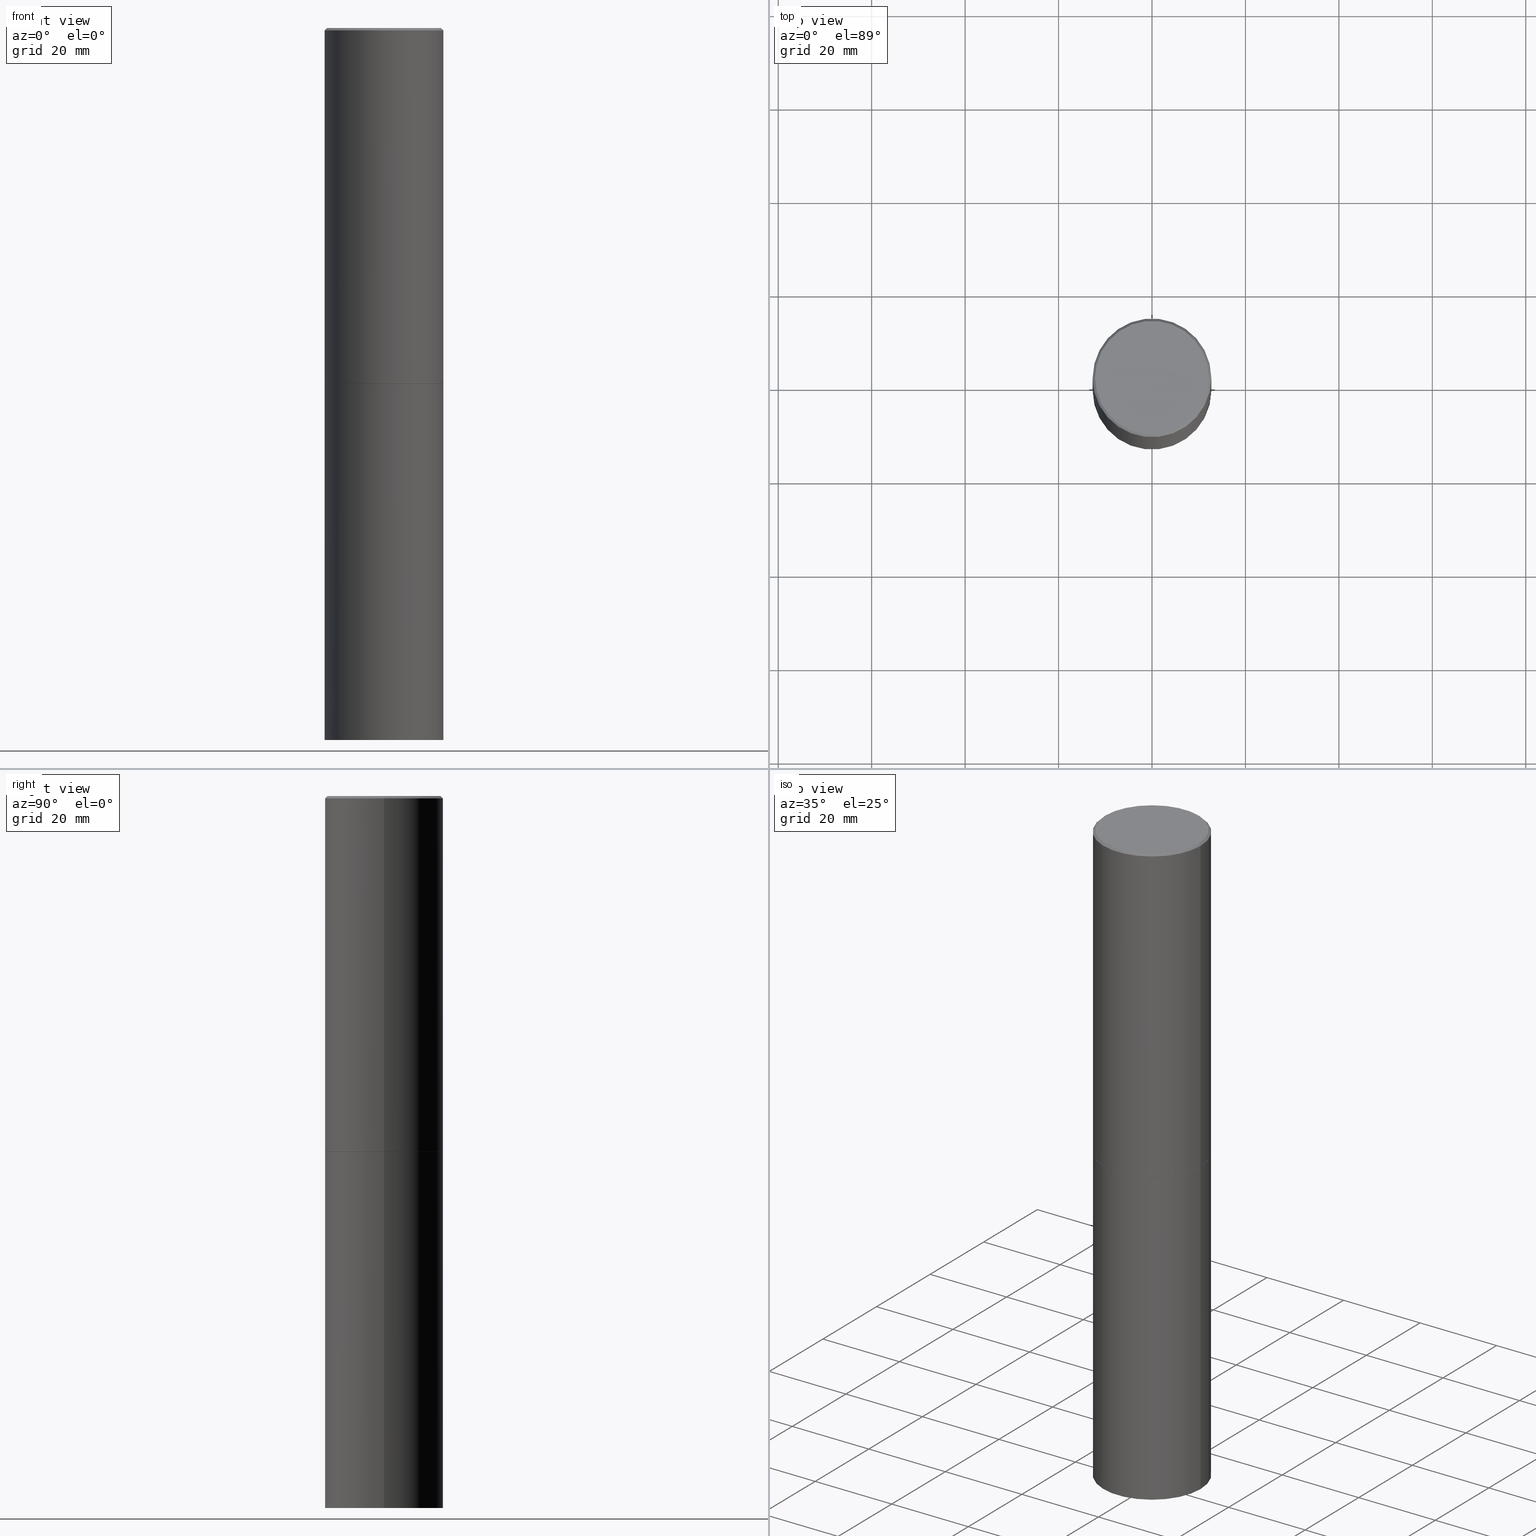
[diagram: canonical four-view strip — front | top / right | iso, engineering-drawing reading convention]
A machine part, canonical four-view strip (front | top / right | iso — engineering-drawing reading convention). The complete STEP part file that produces these views, byte-faithful:
ISO-10303-21;
HEADER;
FILE_DESCRIPTION (( 'STEP AP203' ),
    '1' );
FILE_NAME ('37695.STEP',
    '2024-02-27T22:45:29',
    ( '' ),
    ( '' ),
    'SwSTEP 2.0',
    'SolidWorks 2023',
    '' );
FILE_SCHEMA (( 'CONFIG_CONTROL_DESIGN' ));
ENDSEC;

DATA;
#1 = LOCAL_TIME ( 17, 45, 29.00000000000000000, #332 ) ;
#2 = ORIENTED_EDGE ( 'NONE', *, *, #165, .T. ) ;
#3 = DATE_TIME_ROLE ( 'creation_date' ) ;
#4 = ORIENTED_EDGE ( 'NONE', *, *, #250, .T. ) ;
#5 = APPROVAL_DATE_TIME ( #344, #346 ) ;
#6 = ORIENTED_EDGE ( 'NONE', *, *, #296, .T. ) ;
#7 = VECTOR ( 'NONE', #289, 39.37007874015748143 ) ;
#8 = PERSON_AND_ORGANIZATION ( #264, #231 ) ;
#9 = ORIENTED_EDGE ( 'NONE', *, *, #233, .F. ) ;
#10 = ORIENTED_EDGE ( 'NONE', *, *, #130, .F. ) ;
#11 =( NAMED_UNIT ( * ) SI_UNIT ( $, .STERADIAN. ) SOLID_ANGLE_UNIT ( ) );
#12 = ORIENTED_EDGE ( 'NONE', *, *, #36, .F. ) ;
#13 = MANIFOLD_SOLID_BREP ( 'Body-Move/Copy2[2]', #126 ) ;
#14 = CARTESIAN_POINT ( 'NONE',  ( -0.4999999999999996114, 3.421651712066267296E-15, -0.02000000000000010797 ) ) ;
#15 = DIRECTION ( 'NONE',  ( 1.000000000000000000, -6.982962677686266711E-15, 0.000000000000000000 ) ) ;
#16 = CARTESIAN_POINT ( 'NONE',  ( -0.5000000000000000000, -1.717677402183225026E-15, -2.999000000000000554 ) ) ;
#17 = LINE ( 'NONE', #125, #307 ) ;
#18 = AXIS2_PLACEMENT_3D ( 'NONE', #97, #153, #308 ) ;
#19 = DIRECTION ( 'NONE',  ( -1.000000000000000000, 6.982962677686266711E-15, 0.000000000000000000 ) ) ;
#20 = DIRECTION ( 'NONE',  ( -2.445468806185136597E-29, 3.491481338843145583E-15, 1.000000000000000000 ) ) ;
#21 = UNCERTAINTY_MEASURE_WITH_UNIT (LENGTH_MEASURE( 1.000000000000000082E-05 ), #236, 'distance_accuracy_value', 'NONE');
#22 = FACE_OUTER_BOUND ( 'NONE', #349, .T. ) ;
#23 = CIRCLE ( 'NONE', #149, 0.4999999999999996114 ) ;
#24 = EDGE_CURVE ( 'NONE', #208, #109, #120, .T. ) ;
#25 = CARTESIAN_POINT ( 'NONE',  ( -0.4999999999999997780, 3.552713678800499352E-15, -2.459467545127452050E-29 ) ) ;
#26 = DIRECTION ( 'NONE',  ( -1.000000000000000000, 6.982962677686265922E-15, -4.876176775795935793E-29 ) ) ;
#27 = CARTESIAN_POINT ( 'NONE',  ( 7.336406418555409790E-29, -1.047444401652943635E-14, -3.000000000000000444 ) ) ;
#28 = CLOSED_SHELL ( 'NONE', ( #105, #292, #274, #180 ) ) ;
#29 =( GEOMETRIC_REPRESENTATION_CONTEXT ( 3 ) GLOBAL_UNCERTAINTY_ASSIGNED_CONTEXT ( ( #21 ) ) GLOBAL_UNIT_ASSIGNED_CONTEXT ( ( #236, #141, #11 ) ) REPRESENTATION_CONTEXT ( 'NONE', 'WORKASPACE' ) );
#30 = DIRECTION ( 'NONE',  ( 1.000000000000000000, 0.000000000000000000, 0.000000000000000000 ) ) ;
#31 = APPROVAL_STATUS ( 'not_yet_approved' ) ;
#32 = VERTEX_POINT ( 'NONE', #345 ) ;
#33 = EDGE_LOOP ( 'NONE', ( #111, #59, #315, #178 ) ) ;
#34 = PERSON_AND_ORGANIZATION_ROLE ( 'creator' ) ;
#35 = ORIENTED_EDGE ( 'NONE', *, *, #201, .F. ) ;
#36 = EDGE_CURVE ( 'NONE', #327, #91, #197, .T. ) ;
#37 = COORDINATED_UNIVERSAL_TIME_OFFSET ( 5, 0, .BEHIND. ) ;
#38 = EDGE_LOOP ( 'NONE', ( #269, #6, #93, #35 ) ) ;
#39 = EDGE_CURVE ( 'NONE', #84, #179, #17, .T. ) ;
#40 = ORIENTED_EDGE ( 'NONE', *, *, #280, .F. ) ;
#41 = DIRECTION ( 'NONE',  ( 2.445468806185136597E-29, -3.491481338843145583E-15, -1.000000000000000000 ) ) ;
#42 = FACE_OUTER_BOUND ( 'NONE', #33, .T. ) ;
#43 = CARTESIAN_POINT ( 'NONE',  ( 1.467281283711081958E-28, -2.094888803305887271E-14, -6.000000000000000888 ) ) ;
#44 = CIRCLE ( 'NONE', #239, 0.5000000000000000000 ) ;
#45 = CARTESIAN_POINT ( 'NONE',  ( -0.4999999999999996114, 3.421651712066267296E-15, -0.02000000000000010797 ) ) ;
#46 = CYLINDRICAL_SURFACE ( 'NONE', #300, 0.5000000000000000000 ) ;
#47 = DIRECTION ( 'NONE',  ( 1.000000000000000000, -6.982962677686265133E-15, 0.000000000000000000 ) ) ;
#48 = CC_DESIGN_PERSON_AND_ORGANIZATION_ASSIGNMENT ( #110, #317, ( #301 ) ) ;
#49 = DIRECTION ( 'NONE',  ( 1.000000000000000000, -6.982962677686266711E-15, 0.000000000000000000 ) ) ;
#50 = CYLINDRICAL_SURFACE ( 'NONE', #113, 0.4999999999999997780 ) ;
#51 = DIRECTION ( 'NONE',  ( -2.445468806185136877E-29, 3.491481338843145188E-15, 1.000000000000000000 ) ) ;
#52 = VERTEX_POINT ( 'NONE', #304 ) ;
#53 = PERSON_AND_ORGANIZATION_ROLE ( 'classification_officer' ) ;
#54 = CARTESIAN_POINT ( 'NONE',  ( -0.5000000000000000000, 3.552713678800500929E-15, -2.459467545127452891E-29 ) ) ;
#55 = PERSON_AND_ORGANIZATION ( #264, #231 ) ;
#56 = ORIENTED_EDGE ( 'NONE', *, *, #280, .T. ) ;
#57 = EDGE_CURVE ( 'NONE', #89, #109, #196, .T. ) ;
#58 = APPLICATION_PROTOCOL_DEFINITION ( 'international standard', 'config_control_design', 1994, #207 ) ;
#59 = ORIENTED_EDGE ( 'NONE', *, *, #36, .T. ) ;
#60 = CIRCLE ( 'NONE', #85, 0.4799999999999995937 ) ;
#61 = COORDINATED_UNIVERSAL_TIME_OFFSET ( 5, 0, .BEHIND. ) ;
#62 = ORIENTED_EDGE ( 'NONE', *, *, #296, .F. ) ;
#63 = ADVANCED_FACE ( 'NONE', ( #275 ), #96, .F. ) ;
#64 = DATE_AND_TIME ( #143, #219 ) ;
#65 = EDGE_LOOP ( 'NONE', ( #355, #260, #199, #235 ) ) ;
#66 = DIRECTION ( 'NONE',  ( 2.445468806185136597E-29, -3.491481338843145583E-15, -1.000000000000000000 ) ) ;
#67 = CONICAL_SURFACE ( 'NONE', #331, 0.4989999999999999991, 0.7853981633975507526 ) ;
#68 = AXIS2_PLACEMENT_3D ( 'NONE', #221, #75, #49 ) ;
#69 = LINE ( 'NONE', #184, #112 ) ;
#70 = DIRECTION ( 'NONE',  ( -2.445468806185136597E-29, 3.491481338843145583E-15, 1.000000000000000000 ) ) ;
#71 = CARTESIAN_POINT ( 'NONE',  ( 4.890937612370299433E-31, -6.982962677686328587E-17, -0.02000000000000010797 ) ) ;
#72 = FACE_OUTER_BOUND ( 'NONE', #118, .T. ) ;
#73 = SECURITY_CLASSIFICATION ( '', '', #119 ) ;
#74 = EDGE_CURVE ( 'NONE', #84, #327, #44, .T. ) ;
#75 = DIRECTION ( 'NONE',  ( -2.445468806185136597E-29, 3.491481338843145583E-15, 1.000000000000000000 ) ) ;
#76 = CC_DESIGN_DATE_AND_TIME_ASSIGNMENT ( #64, #3, ( #305 ) ) ;
#77 = DIRECTION ( 'NONE',  ( -2.445468806185136597E-29, 3.491481338843145583E-15, 1.000000000000000000 ) ) ;
#78 = CARTESIAN_POINT ( 'NONE',  ( 0.000000000000000000, 0.000000000000000000, 0.000000000000000000 ) ) ;
#79 = VECTOR ( 'NONE', #51, 39.37007874015748143 ) ;
#80 = CARTESIAN_POINT ( 'NONE',  ( -0.4799999999999995937, 3.386736898677836436E-15, 1.280553747027767124E-17 ) ) ;
#81 = ADVANCED_FACE ( 'NONE', ( #72 ), #256, .T. ) ;
#82 = CARTESIAN_POINT ( 'NONE',  ( -3.131554243005659264E-46, 4.471029511141341874E-32, 1.280553747030123384E-17 ) ) ;
#83 = PERSON_AND_ORGANIZATION ( #264, #231 ) ;
#84 = VERTEX_POINT ( 'NONE', #336 ) ;
#85 = AXIS2_PLACEMENT_3D ( 'NONE', #129, #248, #218 ) ;
#86 = AXIS2_PLACEMENT_3D ( 'NONE', #286, #168, #223 ) ;
#87 = DATE_AND_TIME ( #348, #121 ) ;
#88 = EDGE_LOOP ( 'NONE', ( #62, #353, #326, #293 ) ) ;
#89 = VERTEX_POINT ( 'NONE', #247 ) ;
#90 = DIRECTION ( 'NONE',  ( 0.000000000000000000, 0.000000000000000000, 1.000000000000000000 ) ) ;
#91 = VERTEX_POINT ( 'NONE', #272 ) ;
#92 = APPROVAL_PERSON_ORGANIZATION ( #8, #346, #175 ) ;
#93 = ORIENTED_EDGE ( 'NONE', *, *, #194, .F. ) ;
#94 = FACE_OUTER_BOUND ( 'NONE', #65, .T. ) ;
#95 = DIRECTION ( 'NONE',  ( -2.445468806185136597E-29, 3.491481338843145583E-15, 1.000000000000000000 ) ) ;
#96 = PLANE ( 'NONE',  #276 ) ;
#97 = CARTESIAN_POINT ( 'NONE',  ( 7.336406418555409790E-29, -1.047444401652943635E-14, -3.000000000000000444 ) ) ;
#98 = DIRECTION ( 'NONE',  ( 2.438088387897960049E-29, -3.491481338843145188E-15, -1.000000000000000000 ) ) ;
#99 = VECTOR ( 'NONE', #172, 39.37007874015748143 ) ;
#100 = CARTESIAN_POINT ( 'NONE',  ( -0.4989999999999999991, -6.928835765086536432E-15, -3.000000000000000444 ) ) ;
#101 = AXIS2_PLACEMENT_3D ( 'NONE', #27, #257, #338 ) ;
#102 = LINE ( 'NONE', #25, #79 ) ;
#103 = DIRECTION ( 'NONE',  ( -2.445468806185136597E-29, 3.491481338843145583E-15, 1.000000000000000000 ) ) ;
#104 = LINE ( 'NONE', #339, #7 ) ;
#105 = ADVANCED_FACE ( 'NONE', ( #42 ), #359, .T. ) ;
#106 = CONICAL_SURFACE ( 'NONE', #251, 0.4999999999999996114, 0.7853981633974450594 ) ;
#107 = AXIS2_PLACEMENT_3D ( 'NONE', #365, #312, #26 ) ;
#108 = DIRECTION ( 'NONE',  ( 0.7071067811865452413, -7.319954787623248157E-15, -0.7071067811865497932 ) ) ;
#109 = VERTEX_POINT ( 'NONE', #45 ) ;
#110 = PERSON_AND_ORGANIZATION ( #264, #231 ) ;
#111 = ORIENTED_EDGE ( 'NONE', *, *, #74, .T. ) ;
#112 = VECTOR ( 'NONE', #302, 39.37007874015748143 ) ;
#113 = AXIS2_PLACEMENT_3D ( 'NONE', #78, #167, #192 ) ;
#114 = APPROVAL ( #31, 'UNSPECIFIED' ) ;
#115 = APPROVAL_STATUS ( 'not_yet_approved' ) ;
#116 = ORIENTED_EDGE ( 'NONE', *, *, #254, .F. ) ;
#117 = LENGTH_MEASURE_WITH_UNIT ( LENGTH_MEASURE( 0.02539999999999999897 ), #265 );
#118 = EDGE_LOOP ( 'NONE', ( #176, #200, #232, #263 ) ) ;
#119 = SECURITY_CLASSIFICATION_LEVEL ( 'unclassified' ) ;
#120 = LINE ( 'NONE', #14, #205 ) ;
#121 = LOCAL_TIME ( 17, 45, 29.00000000000000000, #267 ) ;
#122 = DIRECTION ( 'NONE',  ( -0.7071067811865452413, 2.468850131082233000E-15, -0.7071067811865497932 ) ) ;
#123 = CARTESIAN_POINT ( 'NONE',  ( -0.4989999999999999991, -6.923537310738314819E-15, -3.000000000000000444 ) ) ;
#124 = ADVANCED_FACE ( 'NONE', ( #360 ), #159, .T. ) ;
#125 = CARTESIAN_POINT ( 'NONE',  ( 0.5000000000000000000, -3.491481338843133355E-15, 2.438088387897967896E-29 ) ) ;
#126 = CLOSED_SHELL ( 'NONE', ( #341, #303, #154, #81, #124, #139, #335, #63 ) ) ;
#127 = CC_DESIGN_APPROVAL ( #282, ( #73 ) ) ;
#128 = DIRECTION ( 'NONE',  ( 1.000000000000000000, -6.982962677686262766E-15, 0.000000000000000000 ) ) ;
#129 = CARTESIAN_POINT ( 'NONE',  ( -3.131554243005659264E-46, 4.471029511141341874E-32, 1.280553747030123384E-17 ) ) ;
#130 = EDGE_CURVE ( 'NONE', #91, #179, #316, .T. ) ;
#131 = MANIFOLD_SOLID_BREP ( 'Body-Move/Copy2[1]', #28 ) ;
#132 = FACE_OUTER_BOUND ( 'NONE', #320, .T. ) ;
#133 = FACE_OUTER_BOUND ( 'NONE', #297, .T. ) ;
#134 = EDGE_CURVE ( 'NONE', #109, #89, #23, .T. ) ;
#135 = CC_DESIGN_PERSON_AND_ORGANIZATION_ASSIGNMENT ( #195, #261, ( #301 ) ) ;
#136 = PLANE ( 'NONE',  #107 ) ;
#137 = AXIS2_PLACEMENT_3D ( 'NONE', #356, #299, #333 ) ;
#138 = MECHANICAL_CONTEXT ( 'NONE', #207, 'mechanical' ) ;
#139 = ADVANCED_FACE ( 'NONE', ( #213 ), #67, .T. ) ;
#140 = ORIENTED_EDGE ( 'NONE', *, *, #130, .T. ) ;
#141 =( NAMED_UNIT ( * ) PLANE_ANGLE_UNIT ( ) SI_UNIT ( $, .RADIAN. ) );
#142 = ORIENTED_EDGE ( 'NONE', *, *, #241, .T. ) ;
#143 = CALENDAR_DATE ( 2024, 27, 2 ) ;
#144 = VERTEX_POINT ( 'NONE', #123 ) ;
#145 = APPROVAL_DATE_TIME ( #177, #114 ) ;
#146 = EDGE_LOOP ( 'NONE', ( #9, #170, #56, #270 ) ) ;
#147 = APPLICATION_CONTEXT ( 'configuration controlled 3d designs of mechanical parts and assemblies' ) ;
#148 = ORIENTED_EDGE ( 'NONE', *, *, #194, .T. ) ;
#149 = AXIS2_PLACEMENT_3D ( 'NONE', #71, #217, #15 ) ;
#150 = VECTOR ( 'NONE', #193, 39.37007874015748143 ) ;
#151 = DIMENSIONAL_EXPONENTS ( 1.000000000000000000, 0.000000000000000000, 0.000000000000000000, 0.000000000000000000, 0.000000000000000000, 0.000000000000000000, 0.000000000000000000 ) ;
#152 = APPROVAL_DATE_TIME ( #361, #282 ) ;
#153 = DIRECTION ( 'NONE',  ( -2.445468806185136597E-29, 3.491481338843145583E-15, 1.000000000000000000 ) ) ;
#154 = ADVANCED_FACE ( 'NONE', ( #94 ), #106, .T. ) ;
#155 = CARTESIAN_POINT ( 'NONE',  ( 4.890937612370299433E-31, -6.982962677686328587E-17, -0.02000000000000010797 ) ) ;
#156 = DIRECTION ( 'NONE',  ( -2.445468806185136597E-29, 3.491481338843145583E-15, 1.000000000000000000 ) ) ;
#157 = AXIS2_PLACEMENT_3D ( 'NONE', #311, #313, #47 ) ;
#158 = AXIS2_PLACEMENT_3D ( 'NONE', #363, #224, #161 ) ;
#159 = CYLINDRICAL_SURFACE ( 'NONE', #230, 0.4999999999999997780 ) ;
#160 = CARTESIAN_POINT ( 'NONE',  ( 0.000000000000000000, 0.000000000000000000, 0.000000000000000000 ) ) ;
#161 = DIRECTION ( 'NONE',  ( -1.000000000000000000, 6.982962677686265922E-15, -4.876176775795935793E-29 ) ) ;
#162 = CIRCLE ( 'NONE', #214, 0.5000000000000000000 ) ;
#163 = DIRECTION ( 'NONE',  ( -2.445468806185136597E-29, 3.491481338843145583E-15, 1.000000000000000000 ) ) ;
#164 = CC_DESIGN_SECURITY_CLASSIFICATION ( #73, ( #301 ) ) ;
#165 = EDGE_CURVE ( 'NONE', #208, #52, #60, .T. ) ;
#166 = DIRECTION ( 'NONE',  ( -2.445468806185136597E-29, 3.491481338843145583E-15, 1.000000000000000000 ) ) ;
#167 = DIRECTION ( 'NONE',  ( -2.445468806185136597E-29, 3.491481338843145583E-15, 1.000000000000000000 ) ) ;
#168 = DIRECTION ( 'NONE',  ( -2.445468806185136597E-29, 3.491481338843145583E-15, 1.000000000000000000 ) ) ;
#169 = AXIS2_PLACEMENT_3D ( 'NONE', #362, #41, #357 ) ;
#170 = ORIENTED_EDGE ( 'NONE', *, *, #268, .T. ) ;
#171 = DIRECTION ( 'NONE',  ( 1.000000000000000000, -6.982962677686265133E-15, 0.000000000000000000 ) ) ;
#172 = DIRECTION ( 'NONE',  ( -2.445468806185136877E-29, 3.491481338843145188E-15, 1.000000000000000000 ) ) ;
#173 = APPROVAL_STATUS ( 'not_yet_approved' ) ;
#174 = EDGE_LOOP ( 'NONE', ( #12, #238, #352, #10 ) ) ;
#175 = APPROVAL_ROLE ( '' ) ;
#176 = ORIENTED_EDGE ( 'NONE', *, *, #249, .F. ) ;
#177 = DATE_AND_TIME ( #228, #277 ) ;
#178 = ORIENTED_EDGE ( 'NONE', *, *, #39, .F. ) ;
#179 = VERTEX_POINT ( 'NONE', #244 ) ;
#180 = ADVANCED_FACE ( 'NONE', ( #189 ), #46, .T. ) ;
#181 = DIRECTION ( 'NONE',  ( 1.000000000000000000, -6.982962677686266711E-15, 0.000000000000000000 ) ) ;
#182 = AXIS2_PLACEMENT_3D ( 'NONE', #216, #70, #306 ) ;
#183 = APPROVAL_PERSON_ORGANIZATION ( #55, #282, #211 ) ;
#184 = CARTESIAN_POINT ( 'NONE',  ( 0.4989999999999999991, -1.395894239269488369E-14, -3.000000000000000444 ) ) ;
#185 = CC_DESIGN_DATE_AND_TIME_ASSIGNMENT ( #87, #198, ( #73 ) ) ;
#186 = CARTESIAN_POINT ( 'NONE',  ( 0.000000000000000000, 0.000000000000000000, 0.000000000000000000 ) ) ;
#187 = DIRECTION ( 'NONE',  ( -2.445468806185136597E-29, 3.491481338843145583E-15, 1.000000000000000000 ) ) ;
#188 = AXIS2_PLACEMENT_3D ( 'NONE', #364, #77, #171 ) ;
#189 = FACE_OUTER_BOUND ( 'NONE', #174, .T. ) ;
#190 = LINE ( 'NONE', #343, #225 ) ;
#191 = DIRECTION ( 'NONE',  ( 1.000000000000000000, -6.982962677686262766E-15, 0.000000000000000000 ) ) ;
#192 = DIRECTION ( 'NONE',  ( 1.000000000000000000, -6.982962677686266711E-15, 4.876176775795935793E-29 ) ) ;
#193 = DIRECTION ( 'NONE',  ( -0.7071067811866199593, 7.493145998870616062E-15, 0.7071067811864750752 ) ) ;
#194 = EDGE_CURVE ( 'NONE', #322, #203, #324, .T. ) ;
#195 = PERSON_AND_ORGANIZATION ( #264, #231 ) ;
#196 = CIRCLE ( 'NONE', #137, 0.4999999999999996114 ) ;
#197 = LINE ( 'NONE', #54, #99 ) ;
#198 = DATE_TIME_ROLE ( 'classification_date' ) ;
#199 = ORIENTED_EDGE ( 'NONE', *, *, #57, .T. ) ;
#200 = ORIENTED_EDGE ( 'NONE', *, *, #165, .F. ) ;
#201 = EDGE_CURVE ( 'NONE', #32, #322, #69, .T. ) ;
#202 = APPROVAL_ROLE ( '' ) ;
#203 = VERTEX_POINT ( 'NONE', #16 ) ;
#204 = PRODUCT_RELATED_PRODUCT_CATEGORY ( 'detail', '', ( #209 ) ) ;
#205 = VECTOR ( 'NONE', #122, 39.37007874015748143 ) ;
#206 = AXIS2_PLACEMENT_3D ( 'NONE', #82, #103, #366 ) ;
#207 = APPLICATION_CONTEXT ( 'configuration controlled 3d designs of mechanical parts and assemblies' ) ;
#208 = VERTEX_POINT ( 'NONE', #80 ) ;
#209 = PRODUCT ( '37695', '37695', '', ( #138 ) ) ;
#210 = EDGE_CURVE ( 'NONE', #327, #84, #162, .T. ) ;
#211 = APPROVAL_ROLE ( '' ) ;
#212 = DIRECTION ( 'NONE',  ( 1.000000000000000000, -6.982962677686266711E-15, 4.876176775795935793E-29 ) ) ;
#213 = FACE_OUTER_BOUND ( 'NONE', #88, .T. ) ;
#214 = AXIS2_PLACEMENT_3D ( 'NONE', #314, #166, #191 ) ;
#215 = CC_DESIGN_APPROVAL ( #346, ( #305 ) ) ;
#216 = CARTESIAN_POINT ( 'NONE',  ( 0.000000000000000000, 0.000000000000000000, 0.000000000000000000 ) ) ;
#217 = DIRECTION ( 'NONE',  ( -2.445468806185136597E-29, 3.491481338843145583E-15, 1.000000000000000000 ) ) ;
#218 = DIRECTION ( 'NONE',  ( 1.000000000000000000, -6.982962677686266711E-15, 4.876036955247133327E-29 ) ) ;
#219 = LOCAL_TIME ( 17, 45, 29.00000000000000000, #37 ) ;
#220 = PLANE ( 'NONE',  #101 ) ;
#221 = CARTESIAN_POINT ( 'NONE',  ( 7.336406418555409790E-29, -1.047444401652943635E-14, -3.000000000000000444 ) ) ;
#222 = CC_DESIGN_PERSON_AND_ORGANIZATION_ASSIGNMENT ( #229, #234, ( #209 ) ) ;
#223 = DIRECTION ( 'NONE',  ( 1.000000000000000000, -6.982962677686266711E-15, 0.000000000000000000 ) ) ;
#224 = DIRECTION ( 'NONE',  ( 2.438088387897960049E-29, -3.491481338843145188E-15, -1.000000000000000000 ) ) ;
#225 = VECTOR ( 'NONE', #108, 39.37007874015748143 ) ;
#226 = EDGE_CURVE ( 'NONE', #144, #32, #246, .T. ) ;
#227 = CARTESIAN_POINT ( 'NONE',  ( 7.336406418555409790E-29, -1.047444401652943635E-14, -3.000000000000000444 ) ) ;
#228 = CALENDAR_DATE ( 2024, 27, 2 ) ;
#229 = PERSON_AND_ORGANIZATION ( #264, #231 ) ;
#230 = AXIS2_PLACEMENT_3D ( 'NONE', #186, #156, #212 ) ;
#231 = ORGANIZATION ( 'UNSPECIFIED', 'UNSPECIFIED', '' ) ;
#232 = ORIENTED_EDGE ( 'NONE', *, *, #24, .T. ) ;
#233 = EDGE_CURVE ( 'NONE', #203, #109, #102, .T. ) ;
#234 = PERSON_AND_ORGANIZATION_ROLE ( 'design_owner' ) ;
#235 = ORIENTED_EDGE ( 'NONE', *, *, #24, .F. ) ;
#236 =( CONVERSION_BASED_UNIT ( 'INCH', #117 ) LENGTH_UNIT ( ) NAMED_UNIT ( #151 ) );
#237 = ORIENTED_EDGE ( 'NONE', *, *, #210, .F. ) ;
#238 = ORIENTED_EDGE ( 'NONE', *, *, #210, .T. ) ;
#239 = AXIS2_PLACEMENT_3D ( 'NONE', #43, #334, #128 ) ;
#240 = CC_DESIGN_APPROVAL ( #114, ( #301 ) ) ;
#241 = EDGE_CURVE ( 'NONE', #52, #208, #271, .T. ) ;
#242 = CARTESIAN_POINT ( 'NONE',  ( 7.336406418555409790E-29, -1.047444401652943635E-14, -3.000000000000000444 ) ) ;
#243 = CALENDAR_DATE ( 2024, 27, 2 ) ;
#244 = CARTESIAN_POINT ( 'NONE',  ( 0.5000000000000000000, -1.396592535537257129E-14, -3.000000000000000444 ) ) ;
#245 = DIRECTION ( 'NONE',  ( -2.445468806185136877E-29, 3.491481338843145188E-15, 1.000000000000000000 ) ) ;
#246 = CIRCLE ( 'NONE', #157, 0.4989999999999999991 ) ;
#247 = CARTESIAN_POINT ( 'NONE',  ( 0.4999999999999996114, -3.500078625662626318E-15, -0.02000000000000010797 ) ) ;
#248 = DIRECTION ( 'NONE',  ( -2.445468806185136597E-29, 3.491481338843145583E-15, 1.000000000000000000 ) ) ;
#249 = EDGE_CURVE ( 'NONE', #52, #89, #190, .T. ) ;
#250 = EDGE_CURVE ( 'NONE', #179, #91, #258, .T. ) ;
#251 = AXIS2_PLACEMENT_3D ( 'NONE', #155, #66, #19 ) ;
#252 = LOCAL_TIME ( 17, 45, 29.00000000000000000, #351 ) ;
#253 = FACE_OUTER_BOUND ( 'NONE', #38, .T. ) ;
#254 = EDGE_CURVE ( 'NONE', #32, #144, #284, .T. ) ;
#255 = FACE_OUTER_BOUND ( 'NONE', #318, .T. ) ;
#256 = CONICAL_SURFACE ( 'NONE', #169, 0.4999999999999996114, 0.7853981633974450594 ) ;
#257 = DIRECTION ( 'NONE',  ( -2.438088387897960049E-29, 3.491481338843145188E-15, 1.000000000000000000 ) ) ;
#258 = CIRCLE ( 'NONE', #68, 0.5000000000000000000 ) ;
#259 = CC_DESIGN_PERSON_AND_ORGANIZATION_ASSIGNMENT ( #319, #53, ( #73 ) ) ;
#260 = ORIENTED_EDGE ( 'NONE', *, *, #249, .T. ) ;
#261 = PERSON_AND_ORGANIZATION_ROLE ( 'creator' ) ;
#262 = ORIENTED_EDGE ( 'NONE', *, *, #57, .F. ) ;
#263 = ORIENTED_EDGE ( 'NONE', *, *, #134, .T. ) ;
#264 = PERSON ( 'UNSPECIFIED', 'UNSPECIFIED', 'UNSPECIFIED', ('UNSPECIFIED'), ('UNSPECIFIED'), ('UNSPECIFIED') ) ;
#265 =( LENGTH_UNIT ( ) NAMED_UNIT ( * ) SI_UNIT ( $, .METRE. ) );
#266 = EDGE_LOOP ( 'NONE', ( #2, #142 ) ) ;
#267 = COORDINATED_UNIVERSAL_TIME_OFFSET ( 5, 0, .BEHIND. ) ;
#268 = EDGE_CURVE ( 'NONE', #203, #322, #325, .T. ) ;
#269 = ORIENTED_EDGE ( 'NONE', *, *, #254, .T. ) ;
#270 = ORIENTED_EDGE ( 'NONE', *, *, #134, .F. ) ;
#271 = CIRCLE ( 'NONE', #206, 0.4799999999999995937 ) ;
#272 = CARTESIAN_POINT ( 'NONE',  ( -0.5000000000000000000, -1.215895234599365439E-14, -3.000000000000000444 ) ) ;
#273 = CARTESIAN_POINT ( 'NONE',  ( 3.351822085289404787E-15, 0.4799999999999995937, -1.669508273909557867E-15 ) ) ;
#274 = ADVANCED_FACE ( 'NONE', ( #133 ), #136, .F. ) ;
#275 = FACE_OUTER_BOUND ( 'NONE', #266, .T. ) ;
#276 = AXIS2_PLACEMENT_3D ( 'NONE', #273, #98, #329 ) ;
#277 = LOCAL_TIME ( 17, 45, 29.00000000000000000, #61 ) ;
#278 = DIRECTION ( 'NONE',  ( 1.000000000000000000, -6.982962677686265133E-15, 0.000000000000000000 ) ) ;
#279 = DIRECTION ( 'NONE',  ( 1.000000000000000000, -6.982962677686266711E-15, 4.876176775795935793E-29 ) ) ;
#280 = EDGE_CURVE ( 'NONE', #322, #89, #104, .T. ) ;
#281 = CARTESIAN_POINT ( 'NONE',  ( -0.5000000000000000000, -1.215895234599365439E-14, -6.000000000000000888 ) ) ;
#282 = APPROVAL ( #173, 'UNSPECIFIED' ) ;
#283 = AXIS2_PLACEMENT_3D ( 'NONE', #330, #20, #181 ) ;
#284 = CIRCLE ( 'NONE', #288, 0.4989999999999999991 ) ;
#285 = DIRECTION ( 'NONE',  ( 1.000000000000000000, -6.982962677686265133E-15, 0.000000000000000000 ) ) ;
#286 = CARTESIAN_POINT ( 'NONE',  ( 7.333960949749226429E-29, -1.047095253519059492E-14, -2.999000000000000554 ) ) ;
#287 = CARTESIAN_POINT ( 'NONE',  ( 0.5000000000000000000, -1.396243387403372828E-14, -2.999000000000000554 ) ) ;
#288 = AXIS2_PLACEMENT_3D ( 'NONE', #227, #163, #285 ) ;
#289 = DIRECTION ( 'NONE',  ( -2.445468806185136877E-29, 3.491481338843145188E-15, 1.000000000000000000 ) ) ;
#290 = PERSON_AND_ORGANIZATION ( #264, #231 ) ;
#291 = ORIENTED_EDGE ( 'NONE', *, *, #233, .T. ) ;
#292 = ADVANCED_FACE ( 'NONE', ( #255 ), #310, .T. ) ;
#293 = ORIENTED_EDGE ( 'NONE', *, *, #268, .F. ) ;
#294 = CALENDAR_DATE ( 2024, 27, 2 ) ;
#295 = ORIENTED_EDGE ( 'NONE', *, *, #226, .F. ) ;
#296 = EDGE_CURVE ( 'NONE', #144, #203, #340, .T. ) ;
#297 = EDGE_LOOP ( 'NONE', ( #4, #140 ) ) ;
#298 = ORIENTED_EDGE ( 'NONE', *, *, #74, .F. ) ;
#299 = DIRECTION ( 'NONE',  ( -2.445468806185136597E-29, 3.491481338843145583E-15, 1.000000000000000000 ) ) ;
#300 = AXIS2_PLACEMENT_3D ( 'NONE', #160, #95, #279 ) ;
#301 = PRODUCT_DEFINITION_FORMATION_WITH_SPECIFIED_SOURCE ( 'ANY', '', #209, .NOT_KNOWN. ) ;
#302 = DIRECTION ( 'NONE',  ( 0.7071067811866199593, -2.468850131083015945E-15, 0.7071067811864750752 ) ) ;
#303 = ADVANCED_FACE ( 'NONE', ( #22 ), #50, .T. ) ;
#304 = CARTESIAN_POINT ( 'NONE',  ( 0.4799999999999995937, -3.396558832296479338E-15, 1.280553747032483033E-17 ) ) ;
#305 = PRODUCT_DEFINITION ( 'UNKNOWN', '', #301, #309 ) ;
#306 = DIRECTION ( 'NONE',  ( 1.000000000000000000, -6.982962677686266711E-15, 4.876176775795935793E-29 ) ) ;
#307 = VECTOR ( 'NONE', #245, 39.37007874015748143 ) ;
#308 = DIRECTION ( 'NONE',  ( 1.000000000000000000, -6.982962677686266711E-15, 0.000000000000000000 ) ) ;
#309 = DESIGN_CONTEXT ( 'detailed design', #147, 'design' ) ;
#310 = PLANE ( 'NONE',  #158 ) ;
#311 = CARTESIAN_POINT ( 'NONE',  ( 7.336406418555409790E-29, -1.047444401652943635E-14, -3.000000000000000444 ) ) ;
#312 = DIRECTION ( 'NONE',  ( 2.438088387897960049E-29, -3.491481338843145188E-15, -1.000000000000000000 ) ) ;
#313 = DIRECTION ( 'NONE',  ( -2.445468806185136597E-29, 3.491481338843145583E-15, 1.000000000000000000 ) ) ;
#314 = CARTESIAN_POINT ( 'NONE',  ( 1.467281283711081958E-28, -2.094888803305887271E-14, -6.000000000000000888 ) ) ;
#315 = ORIENTED_EDGE ( 'NONE', *, *, #250, .F. ) ;
#316 = CIRCLE ( 'NONE', #18, 0.5000000000000000000 ) ;
#317 = PERSON_AND_ORGANIZATION_ROLE ( 'design_supplier' ) ;
#318 = EDGE_LOOP ( 'NONE', ( #298, #237 ) ) ;
#319 = PERSON_AND_ORGANIZATION ( #264, #231 ) ;
#320 = EDGE_LOOP ( 'NONE', ( #116, #295 ) ) ;
#321 = CARTESIAN_POINT ( 'NONE',  ( 0.000000000000000000, 0.000000000000000000, 0.000000000000000000 ) ) ;
#322 = VERTEX_POINT ( 'NONE', #287 ) ;
#323 = APPLICATION_PROTOCOL_DEFINITION ( 'international standard', 'config_control_design', 1994, #147 ) ;
#324 = CIRCLE ( 'NONE', #283, 0.5000000000000000000 ) ;
#325 = CIRCLE ( 'NONE', #86, 0.5000000000000000000 ) ;
#326 = ORIENTED_EDGE ( 'NONE', *, *, #201, .T. ) ;
#327 = VERTEX_POINT ( 'NONE', #281 ) ;
#328 = SHAPE_DEFINITION_REPRESENTATION ( #350, #358 ) ;
#329 = DIRECTION ( 'NONE',  ( -1.000000000000000000, 6.982962677686265922E-15, -4.876176775795935793E-29 ) ) ;
#330 = CARTESIAN_POINT ( 'NONE',  ( 7.333960949749226429E-29, -1.047095253519059492E-14, -2.999000000000000554 ) ) ;
#331 = AXIS2_PLACEMENT_3D ( 'NONE', #242, #187, #278 ) ;
#332 = COORDINATED_UNIVERSAL_TIME_OFFSET ( 5, 0, .BEHIND. ) ;
#333 = DIRECTION ( 'NONE',  ( 1.000000000000000000, -6.982962677686266711E-15, 0.000000000000000000 ) ) ;
#334 = DIRECTION ( 'NONE',  ( -2.445468806185136597E-29, 3.491481338843145583E-15, 1.000000000000000000 ) ) ;
#335 = ADVANCED_FACE ( 'NONE', ( #132 ), #220, .F. ) ;
#336 = CARTESIAN_POINT ( 'NONE',  ( 0.5000000000000000000, -2.444036937190200606E-14, -6.000000000000000888 ) ) ;
#337 = CC_DESIGN_PERSON_AND_ORGANIZATION_ASSIGNMENT ( #290, #34, ( #305 ) ) ;
#338 = DIRECTION ( 'NONE',  ( 1.000000000000000000, -6.982962677686265922E-15, 4.876176775795935793E-29 ) ) ;
#339 = CARTESIAN_POINT ( 'NONE',  ( 0.4999999999999997780, -3.491481338843131778E-15, 2.438088387897966775E-29 ) ) ;
#340 = LINE ( 'NONE', #100, #150 ) ;
#341 = ADVANCED_FACE ( 'NONE', ( #253 ), #347, .T. ) ;
#342 = APPROVAL_PERSON_ORGANIZATION ( #83, #114, #202 ) ;
#343 = CARTESIAN_POINT ( 'NONE',  ( 0.4999999999999996114, -3.500078625662626318E-15, -0.02000000000000010797 ) ) ;
#344 = DATE_AND_TIME ( #294, #252 ) ;
#345 = CARTESIAN_POINT ( 'NONE',  ( 0.4989999999999999991, -1.395894239269488369E-14, -3.000000000000000444 ) ) ;
#346 = APPROVAL ( #115, 'UNSPECIFIED' ) ;
#347 = CONICAL_SURFACE ( 'NONE', #188, 0.4989999999999999991, 0.7853981633975507526 ) ;
#348 = CALENDAR_DATE ( 2024, 27, 2 ) ;
#349 = EDGE_LOOP ( 'NONE', ( #148, #291, #262, #40 ) ) ;
#350 = PRODUCT_DEFINITION_SHAPE ( 'NONE', 'NONE',  #305 ) ;
#351 = COORDINATED_UNIVERSAL_TIME_OFFSET ( 5, 0, .BEHIND. ) ;
#352 = ORIENTED_EDGE ( 'NONE', *, *, #39, .T. ) ;
#353 = ORIENTED_EDGE ( 'NONE', *, *, #226, .T. ) ;
#354 = AXIS2_PLACEMENT_3D ( 'NONE', #321, #90, #30 ) ;
#355 = ORIENTED_EDGE ( 'NONE', *, *, #241, .F. ) ;
#356 = CARTESIAN_POINT ( 'NONE',  ( 4.890937612370299433E-31, -6.982962677686328587E-17, -0.02000000000000010797 ) ) ;
#357 = DIRECTION ( 'NONE',  ( -1.000000000000000000, 6.982962677686266711E-15, 0.000000000000000000 ) ) ;
#358 = ADVANCED_BREP_SHAPE_REPRESENTATION ( '37695', ( #131, #13, #354 ), #29 ) ;
#359 = CYLINDRICAL_SURFACE ( 'NONE', #182, 0.5000000000000000000 ) ;
#360 = FACE_OUTER_BOUND ( 'NONE', #146, .T. ) ;
#361 = DATE_AND_TIME ( #243, #1 ) ;
#362 = CARTESIAN_POINT ( 'NONE',  ( 4.890937612370299433E-31, -6.982962677686328587E-17, -0.02000000000000010797 ) ) ;
#363 = CARTESIAN_POINT ( 'NONE',  ( 3.491481338843279295E-15, 0.4999999999999790168, -6.000000000000002665 ) ) ;
#364 = CARTESIAN_POINT ( 'NONE',  ( 7.336406418555409790E-29, -1.047444401652943635E-14, -3.000000000000000444 ) ) ;
#365 = CARTESIAN_POINT ( 'NONE',  ( 3.491481338843206325E-15, 0.4999999999999895639, -3.000000000000001776 ) ) ;
#366 = DIRECTION ( 'NONE',  ( 1.000000000000000000, -6.982962677686266711E-15, 4.876036955247133327E-29 ) ) ;
ENDSEC;
END-ISO-10303-21;
